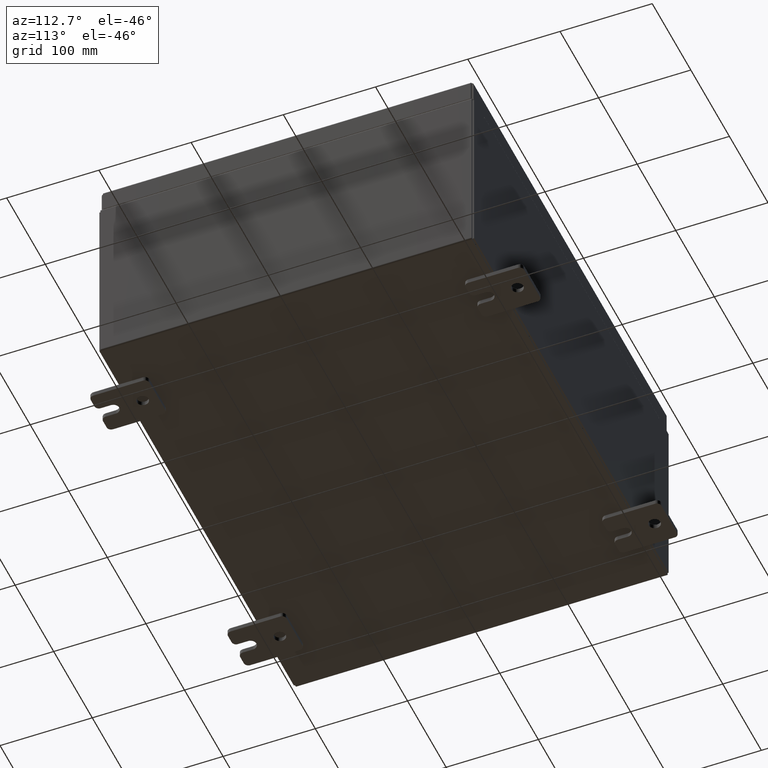
[diagram: clean part render]
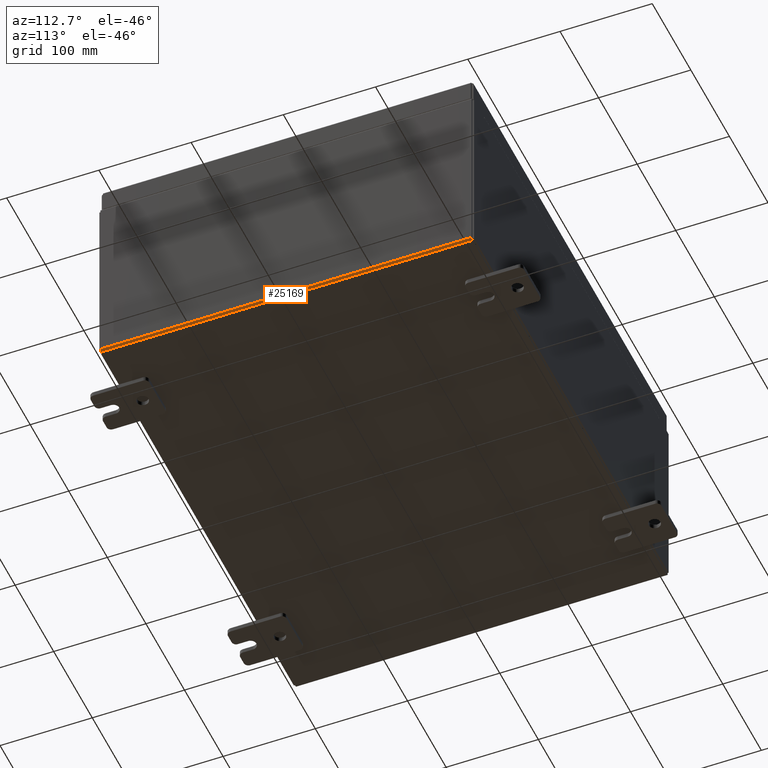
[diagram: same view with one face highlighted and labeled with its STEP entity id]
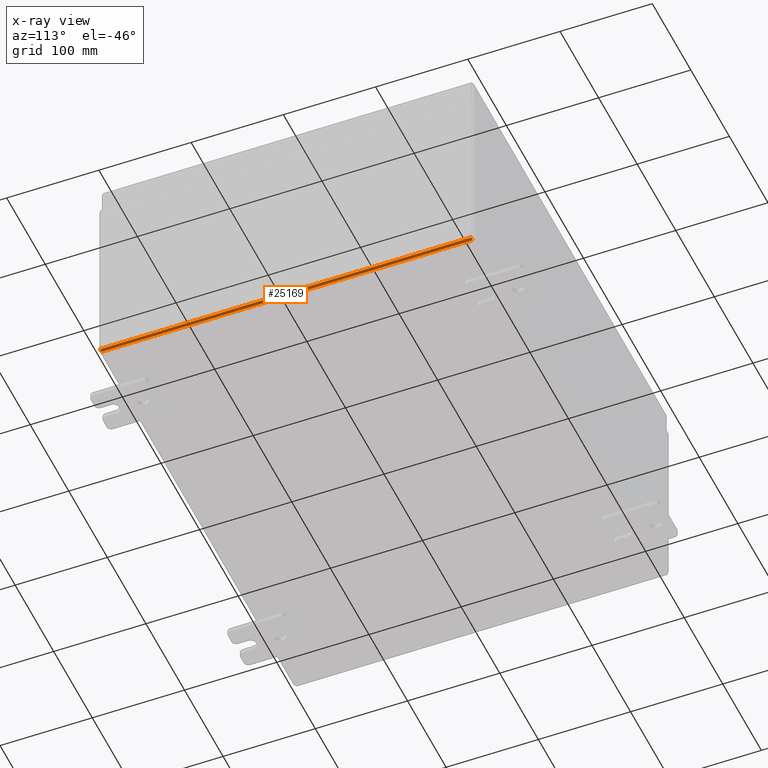
[diagram: x-ray of the same camera — body ghosted, the highlighted face saturated]
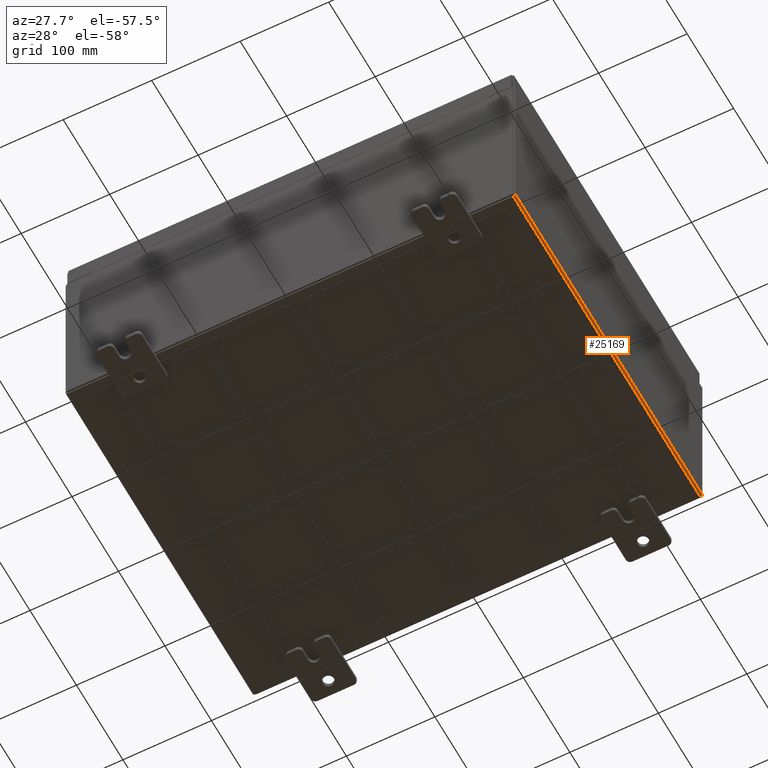
[diagram: same view with one face highlighted and labeled with its STEP entity id]
A machine part, auxiliary view. The second image highlights one B-rep face of the part: STEP entity #25169.
The next image is the same camera in x-ray: the body ghosted, the highlighted face saturated — about 0% of this face is hidden behind the body in this view.
A second angle (auxiliary view) of the same face is appended — the face is thin or edge-on in the first view.
In plain terms, the highlighted cylindrical surface (edge-blend (fillet) strip) has radius 2.2276 mm, axis along (0, 1, 0).
Its self-contained STEP definition (entity closure, byte-faithful):
#760 = DIRECTION ( 'NONE',  ( 0.0000000000000000000, 1.000000000000000000, 0.0000000000000000000 ) ) ;
#1457 = EDGE_CURVE ( 'NONE', #33614, #35732, #62947, .T. ) ;
#1785 = VERTEX_POINT ( 'NONE', #54547 ) ;
#6169 = EDGE_LOOP ( 'NONE', ( #46931, #35453, #44677, #62496 ) ) ;
#6264 = CARTESIAN_POINT ( 'NONE',  ( 10.00000000000000000, 7.925300000000000000, 0.01299999999999984700 ) ) ;
#7678 = EDGE_CURVE ( 'NONE', #33614, #1785, #54322, .T. ) ;
#9865 = DIRECTION ( 'NONE',  ( -0.0000000000000000000, -1.000000000000000000, -0.0000000000000000000 ) ) ;
#10740 = CARTESIAN_POINT ( 'NONE',  ( 9.912300000000000100, -7.925300000000000000, -0.07470000000000000300 ) ) ;
#13447 = CARTESIAN_POINT ( 'NONE',  ( 9.912300000000000100, -7.925300000000000000, 0.01300000000000015200 ) ) ;
#14297 = CYLINDRICAL_SURFACE ( 'NONE', #41338, 0.08770000000000026400 ) ;
#15216 = CARTESIAN_POINT ( 'NONE',  ( 9.912300000000000100, 7.925300000000000000, -0.07469999999999994700 ) ) ;
#18337 = DIRECTION ( 'NONE',  ( 0.0000000000000000000, 0.0000000000000000000, 1.000000000000000000 ) ) ;
#24015 = CARTESIAN_POINT ( 'NONE',  ( 9.912300000000000100, 7.925300000000000000, -0.07469999999999994700 ) ) ;
#25169 = ADVANCED_FACE ( 'NONE', ( #41667 ), #14297, .T. ) ;
#26359 = AXIS2_PLACEMENT_3D ( 'NONE', #28271, #62224, #33139 ) ;
#26510 = EDGE_CURVE ( 'NONE', #35732, #40356, #44104, .T. ) ;
#27795 = CIRCLE ( 'NONE', #55871, 0.08770000000000009700 ) ;
#28271 = CARTESIAN_POINT ( 'NONE',  ( 9.912300000000000100, 7.925300000000000000, 0.01300000000000015200 ) ) ;
#29633 = VECTOR ( 'NONE', #54081, 39.37007874015748100 ) ;
#31524 = VECTOR ( 'NONE', #9865, 39.37007874015748100 ) ;
#33139 = DIRECTION ( 'NONE',  ( 0.0000000000000000000, 0.0000000000000000000, 1.000000000000000000 ) ) ;
#33614 = VERTEX_POINT ( 'NONE', #6264 ) ;
#33901 = EDGE_CURVE ( 'NONE', #40356, #1785, #27795, .T. ) ;
#34763 = DIRECTION ( 'NONE',  ( 1.000000000000000000, 0.0000000000000000000, -3.577373637655407700E-015 ) ) ;
#35453 = ORIENTED_EDGE ( 'NONE', *, *, #1457, .F. ) ;
#35732 = VERTEX_POINT ( 'NONE', #24015 ) ;
#38962 = CARTESIAN_POINT ( 'NONE',  ( 10.00000000000000000, -7.925300000000000000, 0.01299999999999984700 ) ) ;
#40356 = VERTEX_POINT ( 'NONE', #10740 ) ;
#41338 = AXIS2_PLACEMENT_3D ( 'NONE', #58179, #760, #34763 ) ;
#41667 = FACE_OUTER_BOUND ( 'NONE', #6169, .T. ) ;
#44104 = LINE ( 'NONE', #15216, #29633 ) ;
#44677 = ORIENTED_EDGE ( 'NONE', *, *, #7678, .T. ) ;
#46931 = ORIENTED_EDGE ( 'NONE', *, *, #26510, .F. ) ;
#47430 = DIRECTION ( 'NONE',  ( -0.0000000000000000000, -1.000000000000000000, -0.0000000000000000000 ) ) ;
#54081 = DIRECTION ( 'NONE',  ( -0.0000000000000000000, -1.000000000000000000, -0.0000000000000000000 ) ) ;
#54322 = LINE ( 'NONE', #38962, #31524 ) ;
#54547 = CARTESIAN_POINT ( 'NONE',  ( 10.00000000000000000, -7.925300000000000000, 0.01299999999999983600 ) ) ;
#55871 = AXIS2_PLACEMENT_3D ( 'NONE', #13447, #47430, #18337 ) ;
#58179 = CARTESIAN_POINT ( 'NONE',  ( 9.912300000000000100, 7.925300000000000000, 0.01300000000000015200 ) ) ;
#62224 = DIRECTION ( 'NONE',  ( 0.0000000000000000000, 1.000000000000000000, 0.0000000000000000000 ) ) ;
#62496 = ORIENTED_EDGE ( 'NONE', *, *, #33901, .F. ) ;
#62947 = CIRCLE ( 'NONE', #26359, 0.08770000000000009700 ) ;